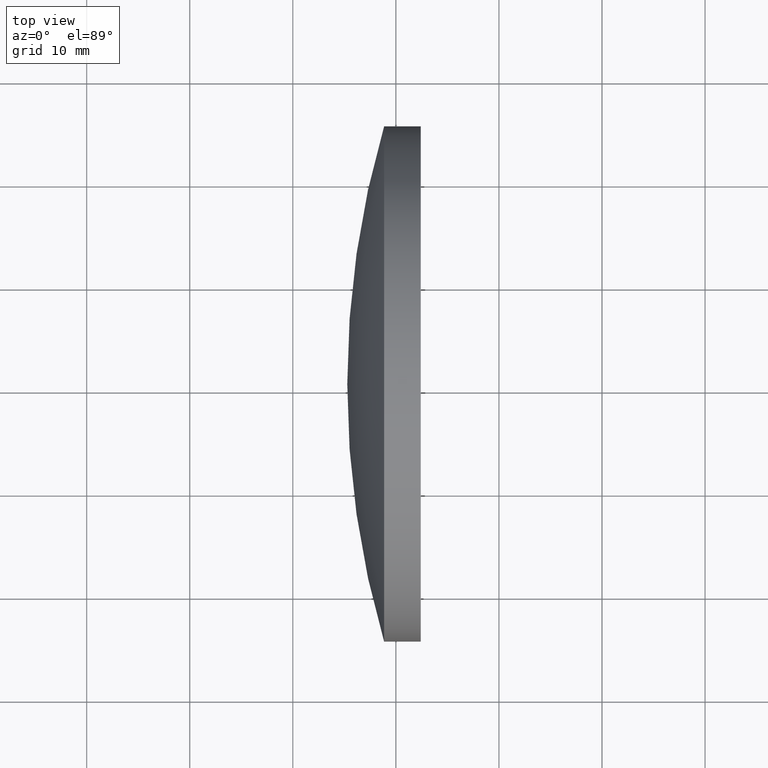
[diagram: clean part render]
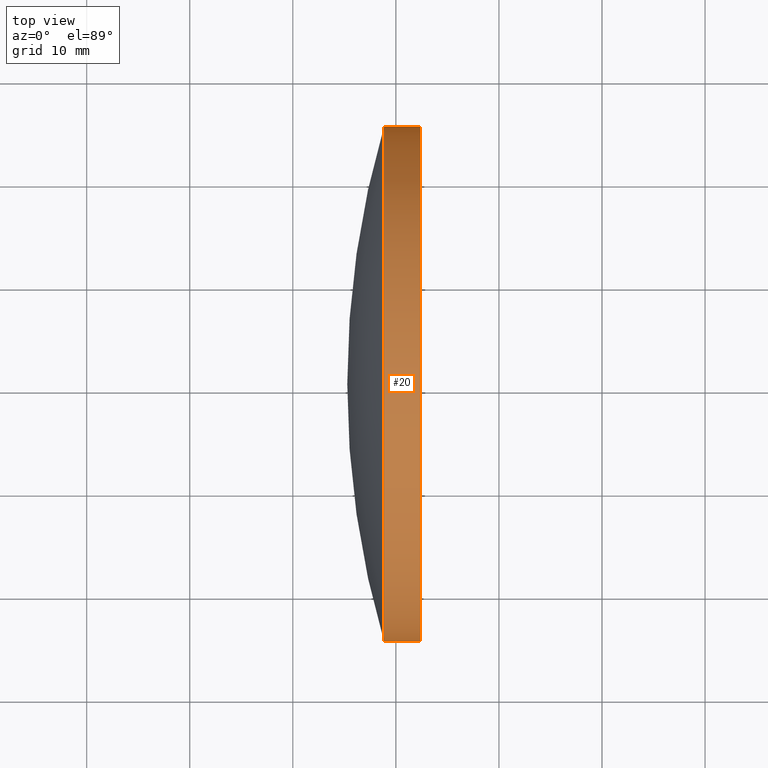
[diagram: same view with one face highlighted and labeled with its STEP entity id]
A machine part, top view. The second image highlights one B-rep face of the part: STEP entity #20.
In plain terms, the highlighted cylindrical surface (partial cylindrical patch) has radius 25 mm, axis along (-1, -0, -0).
Its self-contained STEP definition (entity closure, byte-faithful):
#19 = VERTEX_POINT ( 'NONE', #141 ) ;
#20 = ADVANCED_FACE ( 'NONE', ( #51 ), #108, .T. ) ;
#25 = EDGE_LOOP ( 'NONE', ( #37, #175, #124, #98 ) ) ;
#30 = DIRECTION ( 'NONE',  ( 0.0000000000000000000, -1.000000000000000000, 0.0000000000000000000 ) ) ;
#34 = CARTESIAN_POINT ( 'NONE',  ( 231.8889825959263100, 155.4336809418806200, 3.061616997868379100E-015 ) ) ;
#35 = CARTESIAN_POINT ( 'NONE',  ( 248.8571347711253200, 130.4336809418806500, 0.0000000000000000000 ) ) ;
#37 = ORIENTED_EDGE ( 'NONE', *, *, #130, .T. ) ;
#40 = CARTESIAN_POINT ( 'NONE',  ( 252.4100194422367500, 105.4336809418806500, -3.061616997868356600E-015 ) ) ;
#51 = FACE_OUTER_BOUND ( 'NONE', #25, .T. ) ;
#56 = AXIS2_PLACEMENT_3D ( 'NONE', #114, #143, #30 ) ;
#63 = LINE ( 'NONE', #34, #183 ) ;
#66 = CIRCLE ( 'NONE', #89, 25.00000000000000700 ) ;
#68 = EDGE_CURVE ( 'NONE', #19, #165, #63, .T. ) ;
#77 = AXIS2_PLACEMENT_3D ( 'NONE', #170, #171, #185 ) ;
#81 = DIRECTION ( 'NONE',  ( -1.000000000000000000, -6.937607244762875000E-016, -0.0000000000000000000 ) ) ;
#85 = DIRECTION ( 'NONE',  ( 1.110223024625156100E-015, -1.000000000000000000, 0.0000000000000000000 ) ) ;
#87 = DIRECTION ( 'NONE',  ( -1.000000000000000000, -6.937607244762875000E-016, -0.0000000000000000000 ) ) ;
#89 = AXIS2_PLACEMENT_3D ( 'NONE', #35, #87, #85 ) ;
#95 = VECTOR ( 'NONE', #147, 1000.000000000000000 ) ;
#98 = ORIENTED_EDGE ( 'NONE', *, *, #142, .F. ) ;
#108 = CYLINDRICAL_SURFACE ( 'NONE', #77, 24.99999999999996800 ) ;
#114 = CARTESIAN_POINT ( 'NONE',  ( 252.4100194422366900, 130.4336809418806800, 0.0000000000000000000 ) ) ;
#116 = VERTEX_POINT ( 'NONE', #192 ) ;
#120 = EDGE_CURVE ( 'NONE', #116, #165, #66, .T. ) ;
#124 = ORIENTED_EDGE ( 'NONE', *, *, #120, .F. ) ;
#130 = EDGE_CURVE ( 'NONE', #168, #19, #180, .T. ) ;
#137 = CARTESIAN_POINT ( 'NONE',  ( 248.8571347711252600, 155.4336809418806500, 0.0000000000000000000 ) ) ;
#141 = CARTESIAN_POINT ( 'NONE',  ( 252.4100194422366900, 155.4336809418804500, 0.0000000000000000000 ) ) ;
#142 = EDGE_CURVE ( 'NONE', #168, #116, #151, .T. ) ;
#143 = DIRECTION ( 'NONE',  ( -1.000000000000000000, -6.937607244762875000E-016, -0.0000000000000000000 ) ) ;
#147 = DIRECTION ( 'NONE',  ( -1.000000000000000000, -6.937607244762875000E-016, -0.0000000000000000000 ) ) ;
#151 = LINE ( 'NONE', #173, #95 ) ;
#165 = VERTEX_POINT ( 'NONE', #137 ) ;
#168 = VERTEX_POINT ( 'NONE', #40 ) ;
#170 = CARTESIAN_POINT ( 'NONE',  ( 231.8889825959263400, 130.4336809418806500, 0.0000000000000000000 ) ) ;
#171 = DIRECTION ( 'NONE',  ( -1.000000000000000000, -6.937607244762875000E-016, -0.0000000000000000000 ) ) ;
#173 = CARTESIAN_POINT ( 'NONE',  ( 231.8889825959263600, 105.4336809418806800, 0.0000000000000000000 ) ) ;
#175 = ORIENTED_EDGE ( 'NONE', *, *, #68, .T. ) ;
#180 = CIRCLE ( 'NONE', #56, 24.99999999999992500 ) ;
#183 = VECTOR ( 'NONE', #81, 1000.000000000000000 ) ;
#185 = DIRECTION ( 'NONE',  ( 1.110223024625157900E-015, -1.000000000000000000, 0.0000000000000000000 ) ) ;
#192 = CARTESIAN_POINT ( 'NONE',  ( 248.8571347711253200, 105.4336809418806200, -3.061616997868384200E-015 ) ) ;